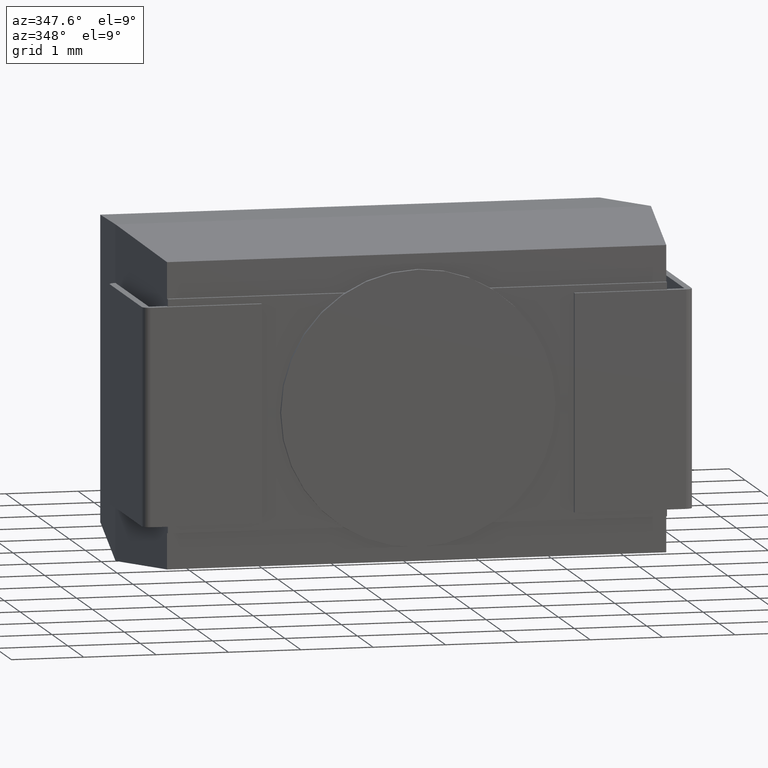
[diagram: clean part render]
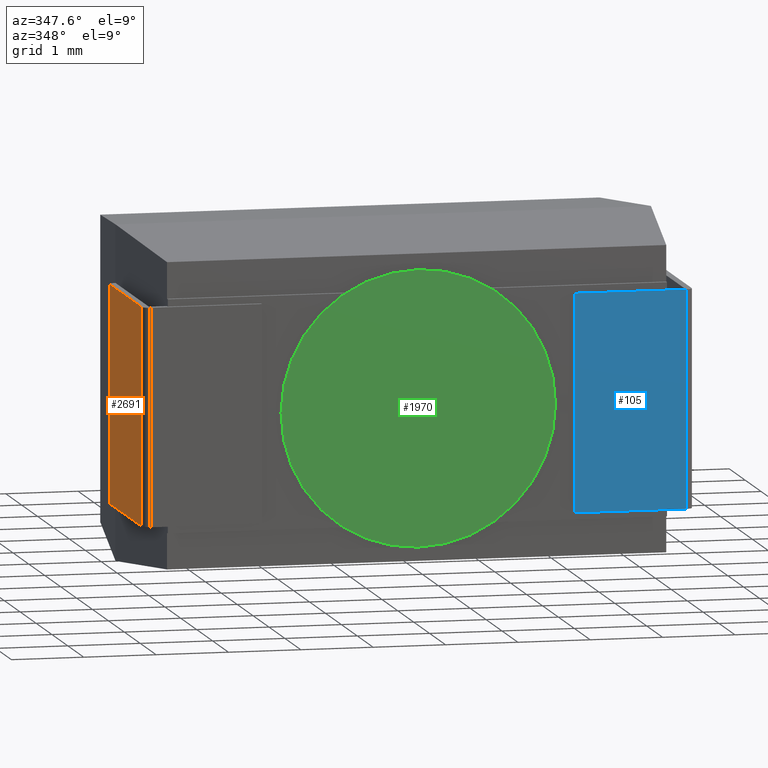
[diagram: same view with three faces highlighted in distinct colors, each labeled with its STEP entity id]
A machine part, auxiliary view with three faces highlighted in distinct colors.
Their STEP definitions:

[orange] entity #2691 — the highlighted planar face has unit normal (-1, -0, 0).
#42 = ORIENTED_EDGE ( 'NONE', *, *, #1466, .T. ) ;
#179 = CARTESIAN_POINT ( 'NONE',  ( -0.1010000000000000064, 2.099999999999997868, -3.799999999999999822 ) ) ;
#471 = VERTEX_POINT ( 'NONE', #3686 ) ;
#519 = VECTOR ( 'NONE', #4221, 1000.000000000000000 ) ;
#631 = CARTESIAN_POINT ( 'NONE',  ( -0.1009999999999998399, 0.000000000000000000, -3.799999999999999822 ) ) ;
#662 = AXIS2_PLACEMENT_3D ( 'NONE', #2636, #4003, #976 ) ;
#722 = LINE ( 'NONE', #2789, #3829 ) ;
#959 = EDGE_CURVE ( 'NONE', #1522, #3038, #3501, .T. ) ;
#976 = DIRECTION ( 'NONE',  ( 8.008311501313392307E-17, -1.000000000000000000, 0.000000000000000000 ) ) ;
#980 = ORIENTED_EDGE ( 'NONE', *, *, #3747, .T. ) ;
#1466 = EDGE_CURVE ( 'NONE', #471, #1522, #3149, .T. ) ;
#1522 = VERTEX_POINT ( 'NONE', #2114 ) ;
#1541 = FACE_OUTER_BOUND ( 'NONE', #3746, .T. ) ;
#1548 = DIRECTION ( 'NONE',  ( 8.008311501313392307E-17, -1.000000000000000000, 0.000000000000000000 ) ) ;
#2114 = CARTESIAN_POINT ( 'NONE',  ( -0.1009999999999999926, 1.999999999999997780, -3.799999999999999822 ) ) ;
#2333 = VECTOR ( 'NONE', #4258, 1000.000000000000000 ) ;
#2408 = CARTESIAN_POINT ( 'NONE',  ( -0.1009999999999998399, 0.000000000000000000, -0.7999999999999999334 ) ) ;
#2443 = PLANE ( 'NONE',  #662 ) ;
#2489 = CARTESIAN_POINT ( 'NONE',  ( -0.1009999999999999926, 1.999999999999997780, -3.799999999999999822 ) ) ;
#2541 = CARTESIAN_POINT ( 'NONE',  ( -0.1010000000000000064, 2.099999999999997868, -0.7999999999999999334 ) ) ;
#2571 = ORIENTED_EDGE ( 'NONE', *, *, #3313, .F. ) ;
#2636 = CARTESIAN_POINT ( 'NONE',  ( -0.1010000000000000064, 2.099999999999997868, -3.799999999999999822 ) ) ;
#2691 = ADVANCED_FACE ( 'NONE', ( #1541 ), #2443, .T. ) ;
#2789 = CARTESIAN_POINT ( 'NONE',  ( -0.1009999999999998399, 0.000000000000000000, -3.799999999999999822 ) ) ;
#3038 = VERTEX_POINT ( 'NONE', #631 ) ;
#3077 = ORIENTED_EDGE ( 'NONE', *, *, #959, .T. ) ;
#3149 = LINE ( 'NONE', #2489, #519 ) ;
#3313 = EDGE_CURVE ( 'NONE', #471, #4004, #3448, .T. ) ;
#3448 = LINE ( 'NONE', #2541, #2333 ) ;
#3501 = LINE ( 'NONE', #179, #3952 ) ;
#3686 = CARTESIAN_POINT ( 'NONE',  ( -0.1009999999999999926, 1.999999999999997780, -0.7999999999999999334 ) ) ;
#3746 = EDGE_LOOP ( 'NONE', ( #3077, #980, #2571, #42 ) ) ;
#3747 = EDGE_CURVE ( 'NONE', #3038, #4004, #722, .T. ) ;
#3829 = VECTOR ( 'NONE', #4162, 1000.000000000000000 ) ;
#3952 = VECTOR ( 'NONE', #1548, 1000.000000000000000 ) ;
#4003 = DIRECTION ( 'NONE',  ( -1.000000000000000000, -8.008311501313392307E-17, 0.000000000000000000 ) ) ;
#4004 = VERTEX_POINT ( 'NONE', #2408 ) ;
#4162 = DIRECTION ( 'NONE',  ( 0.000000000000000000, 0.000000000000000000, 1.000000000000000000 ) ) ;
#4221 = DIRECTION ( 'NONE',  ( -0.000000000000000000, -0.000000000000000000, -1.000000000000000000 ) ) ;
#4258 = DIRECTION ( 'NONE',  ( 8.008311501313392307E-17, -1.000000000000000000, 0.000000000000000000 ) ) ;

[blue] entity #105 — the highlighted planar face has unit normal (0, 1, -0).
#105 = ADVANCED_FACE ( 'NONE', ( #1128 ), #2060, .F. ) ;
#170 = LINE ( 'NONE', #1539, #2747 ) ;
#188 = DIRECTION ( 'NONE',  ( 0.000000000000000000, 0.000000000000000000, 1.000000000000000000 ) ) ;
#361 = CARTESIAN_POINT ( 'NONE',  ( 7.401000000000000689, -0.1000000000000000472, -0.7999999999999999334 ) ) ;
#393 = EDGE_CURVE ( 'NONE', #2008, #1916, #170, .T. ) ;
#567 = VERTEX_POINT ( 'NONE', #361 ) ;
#581 = ORIENTED_EDGE ( 'NONE', *, *, #1229, .F. ) ;
#947 = VECTOR ( 'NONE', #2271, 1000.000000000000000 ) ;
#1106 = DIRECTION ( 'NONE',  ( 0.000000000000000000, 0.000000000000000000, 1.000000000000000000 ) ) ;
#1128 = FACE_OUTER_BOUND ( 'NONE', #3647, .T. ) ;
#1229 = EDGE_CURVE ( 'NONE', #1916, #1403, #3752, .T. ) ;
#1403 = VERTEX_POINT ( 'NONE', #3717 ) ;
#1407 = ORIENTED_EDGE ( 'NONE', *, *, #393, .F. ) ;
#1415 = DIRECTION ( 'NONE',  ( 0.000000000000000000, 1.000000000000000000, -0.000000000000000000 ) ) ;
#1539 = CARTESIAN_POINT ( 'NONE',  ( 7.500999999999999446, -0.1000000000000000472, -3.799999999999999822 ) ) ;
#1735 = ORIENTED_EDGE ( 'NONE', *, *, #4321, .T. ) ;
#1864 = CARTESIAN_POINT ( 'NONE',  ( 7.500999999999999446, -0.1000000000000000472, -0.7999999999999999334 ) ) ;
#1888 = CARTESIAN_POINT ( 'NONE',  ( 5.862220117805301278, -0.1000000000000000472, -3.799999999999999822 ) ) ;
#1916 = VERTEX_POINT ( 'NONE', #2119 ) ;
#1984 = EDGE_CURVE ( 'NONE', #567, #1403, #3237, .T. ) ;
#2008 = VERTEX_POINT ( 'NONE', #2887 ) ;
#2060 = PLANE ( 'NONE',  #3745 ) ;
#2119 = CARTESIAN_POINT ( 'NONE',  ( 5.862220117805301278, -0.1000000000000000472, -3.799999999999999822 ) ) ;
#2271 = DIRECTION ( 'NONE',  ( -1.000000000000000000, 0.000000000000000000, 0.000000000000000000 ) ) ;
#2496 = ORIENTED_EDGE ( 'NONE', *, *, #1984, .T. ) ;
#2744 = DIRECTION ( 'NONE',  ( 0.000000000000000000, 0.000000000000000000, 1.000000000000000000 ) ) ;
#2747 = VECTOR ( 'NONE', #4268, 1000.000000000000000 ) ;
#2797 = VECTOR ( 'NONE', #1106, 1000.000000000000000 ) ;
#2887 = CARTESIAN_POINT ( 'NONE',  ( 7.401000000000000689, -0.1000000000000000472, -3.799999999999999822 ) ) ;
#3237 = LINE ( 'NONE', #1864, #947 ) ;
#3425 = VECTOR ( 'NONE', #188, 1000.000000000000000 ) ;
#3647 = EDGE_LOOP ( 'NONE', ( #1407, #1735, #2496, #581 ) ) ;
#3717 = CARTESIAN_POINT ( 'NONE',  ( 5.862220117805301278, -0.1000000000000000472, -0.7999999999999999334 ) ) ;
#3745 = AXIS2_PLACEMENT_3D ( 'NONE', #4110, #1415, #2744 ) ;
#3752 = LINE ( 'NONE', #1888, #2797 ) ;
#3760 = LINE ( 'NONE', #3917, #3425 ) ;
#3917 = CARTESIAN_POINT ( 'NONE',  ( 7.401000000000000689, -0.1000000000000000472, -3.799999999999999822 ) ) ;
#4110 = CARTESIAN_POINT ( 'NONE',  ( 7.500999999999999446, -0.1000000000000000472, -3.799999999999999822 ) ) ;
#4268 = DIRECTION ( 'NONE',  ( -1.000000000000000000, 0.000000000000000000, 0.000000000000000000 ) ) ;
#4321 = EDGE_CURVE ( 'NONE', #2008, #567, #3760, .T. ) ;

[green] entity #1970 — the highlighted planar face has unit normal (0, -1, 0).
#98 = CARTESIAN_POINT ( 'NONE',  ( 3.699999999999999734, -0.1000000000000000056, -0.4034721224286383912 ) ) ;
#111 = VERTEX_POINT ( 'NONE', #98 ) ;
#195 = PLANE ( 'NONE',  #2901 ) ;
#334 = EDGE_CURVE ( 'NONE', #111, #2320, #3887, .T. ) ;
#796 = CIRCLE ( 'NONE', #3278, 1.896527877571361431 ) ;
#841 = CARTESIAN_POINT ( 'NONE',  ( 3.699999999999999734, -0.1000000000000000056, -2.299999999999999822 ) ) ;
#998 = ORIENTED_EDGE ( 'NONE', *, *, #334, .T. ) ;
#1215 = AXIS2_PLACEMENT_3D ( 'NONE', #1816, #2093, #1450 ) ;
#1286 = DIRECTION ( 'NONE',  ( 0.000000000000000000, 0.000000000000000000, -1.000000000000000000 ) ) ;
#1450 = DIRECTION ( 'NONE',  ( 0.000000000000000000, 0.000000000000000000, -1.000000000000000000 ) ) ;
#1621 = CARTESIAN_POINT ( 'NONE',  ( 3.700000000000000178, -0.1000000000000000056, -4.196527877571361032 ) ) ;
#1816 = CARTESIAN_POINT ( 'NONE',  ( 3.699999999999999734, -0.1000000000000000056, -2.299999999999999822 ) ) ;
#1906 = FACE_OUTER_BOUND ( 'NONE', #3926, .T. ) ;
#1970 = ADVANCED_FACE ( 'NONE', ( #1906 ), #195, .T. ) ;
#2093 = DIRECTION ( 'NONE',  ( 0.000000000000000000, -1.000000000000000000, 0.000000000000000000 ) ) ;
#2320 = VERTEX_POINT ( 'NONE', #1621 ) ;
#2901 = AXIS2_PLACEMENT_3D ( 'NONE', #841, #3299, #3260 ) ;
#3106 = ORIENTED_EDGE ( 'NONE', *, *, #4177, .T. ) ;
#3260 = DIRECTION ( 'NONE',  ( 0.000000000000000000, -0.000000000000000000, -1.000000000000000000 ) ) ;
#3278 = AXIS2_PLACEMENT_3D ( 'NONE', #4073, #3314, #1286 ) ;
#3299 = DIRECTION ( 'NONE',  ( 0.000000000000000000, -1.000000000000000000, 0.000000000000000000 ) ) ;
#3314 = DIRECTION ( 'NONE',  ( 0.000000000000000000, -1.000000000000000000, 0.000000000000000000 ) ) ;
#3887 = CIRCLE ( 'NONE', #1215, 1.896527877571361431 ) ;
#3926 = EDGE_LOOP ( 'NONE', ( #998, #3106 ) ) ;
#4073 = CARTESIAN_POINT ( 'NONE',  ( 3.699999999999999734, -0.1000000000000000056, -2.299999999999999822 ) ) ;
#4177 = EDGE_CURVE ( 'NONE', #2320, #111, #796, .T. ) ;